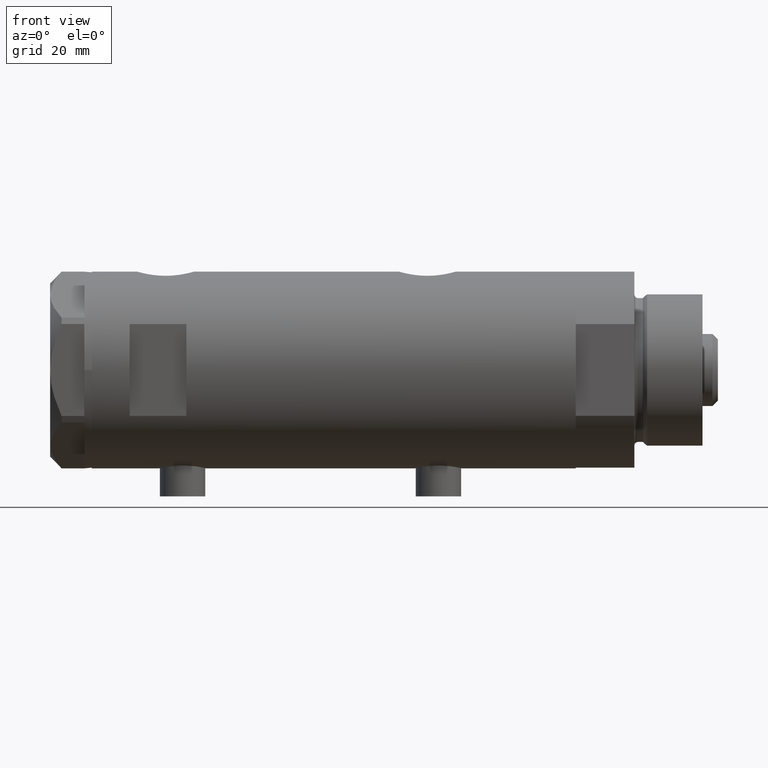
[diagram: clean part render]
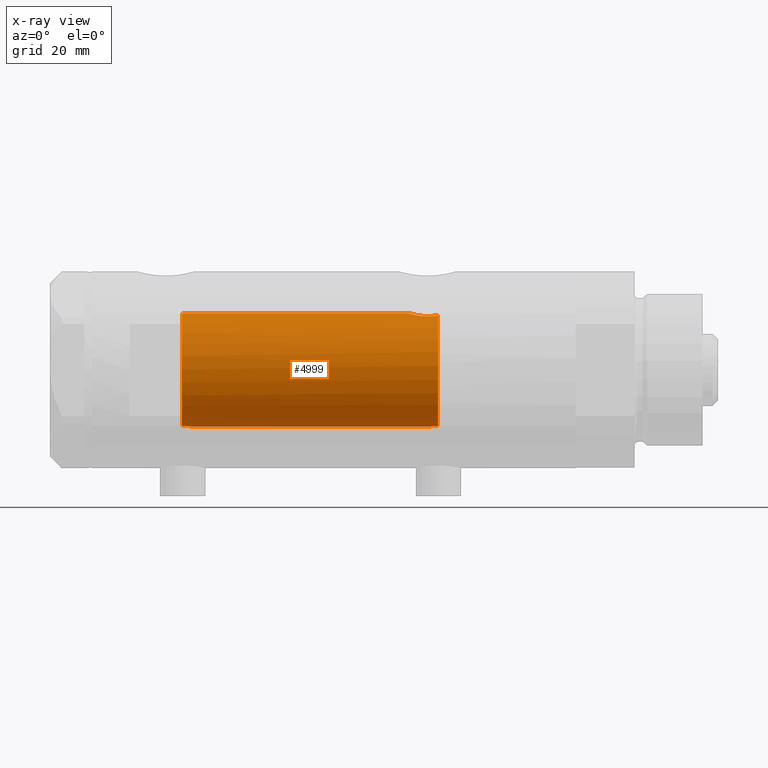
[diagram: x-ray — body ghosted, one internal face saturated and labeled with its STEP entity id]
A machine part, front view, then the same camera in x-ray: the body is ghosted and one INTERNAL B-rep face — a face not visible from any outside direction — is saturated and labeled: STEP entity #4999.
In plain terms, the highlighted cylindrical surface (partial cylindrical patch) has radius 15 mm, axis along (1, 0, -0).
Its self-contained STEP definition (entity closure, byte-faithful):
#130 = CARTESIAN_POINT ( 'NONE',  ( 14.46277203719950677, -3.978470183374504199, -27.55000000000000426 ) ) ;
#132 = CARTESIAN_POINT ( 'NONE',  ( 15.00000000000000000, 5.959273468635536151E-16, -19.88500000000000156 ) ) ;
#153 = CARTESIAN_POINT ( 'NONE',  ( -14.96154495298569032, -1.083625483837068026, -25.39138979525010598 ) ) ;
#193 = CARTESIAN_POINT ( 'NONE',  ( 14.23846660849503465, -4.718934182878723682, -25.95401121469808459 ) ) ;
#205 = CARTESIAN_POINT ( 'NONE',  ( -14.84760220014584498, -2.134792770974418108, -26.33921818480346033 ) ) ;
#253 = CARTESIAN_POINT ( 'NONE',  ( -14.83314878996174357, -2.232849285003168482, 38.81256080311607803 ) ) ;
#278 = CARTESIAN_POINT ( 'NONE',  ( -14.99695275358354252, -0.3460123648701027288, 37.46810396824249523 ) ) ;
#301 = AXIS2_PLACEMENT_3D ( 'NONE', #3387, #2029, #4065 ) ;
#346 = EDGE_CURVE ( 'NONE', #545, #2776, #3412, .T. ) ;
#365 = CARTESIAN_POINT ( 'NONE',  ( 0.000000000000000000, 0.000000000000000000, -27.55000000000000426 ) ) ;
#472 = CARTESIAN_POINT ( 'NONE',  ( -15.00000000000000000, 0.000000000000000000, 63.95000000000000995 ) ) ;
#545 = VERTEX_POINT ( 'NONE', #130 ) ;
#565 = CARTESIAN_POINT ( 'NONE',  ( -14.95054302956255121, -1.224431043437662625, -25.46458290830103977 ) ) ;
#596 = CARTESIAN_POINT ( 'NONE',  ( -14.92627313122705779, -1.491421694539937226, -25.63730514635739866 ) ) ;
#632 = EDGE_CURVE ( 'NONE', #2374, #4675, #4345, .T. ) ;
#664 = CARTESIAN_POINT ( 'NONE',  ( -14.82167156606024783, -2.306788152106016287, 38.97115114601642460 ) ) ;
#673 = CARTESIAN_POINT ( 'NONE',  ( -14.99740058099025930, -0.3199290537848247240, -25.16546469274587139 ) ) ;
#853 = VERTEX_POINT ( 'NONE', #2956 ) ;
#854 = ORIENTED_EDGE ( 'NONE', *, *, #1877, .F. ) ;
#940 = CARTESIAN_POINT ( 'NONE',  ( 15.00000000000000000, -0.2216692655473424256, -19.88499999999999801 ) ) ;
#1017 = CARTESIAN_POINT ( 'NONE',  ( 14.98404828787190191, -0.7909490205761877668, 39.63356230794191504 ) ) ;
#1023 = CARTESIAN_POINT ( 'NONE',  ( 15.00000000000000000, 5.959273468635536151E-16, -19.88500000000000156 ) ) ;
#1026 = CARTESIAN_POINT ( 'NONE',  ( -14.97699254061832796, -0.8454257663520248212, 37.59097868826834343 ) ) ;
#1032 = CARTESIAN_POINT ( 'NONE',  ( -14.80570803900863908, -2.410056876876584209, -26.91354637206099554 ) ) ;
#1046 = CARTESIAN_POINT ( 'NONE',  ( 14.90017778876745069, -1.739641523727900596, -20.20130925695125867 ) ) ;
#1050 = CARTESIAN_POINT ( 'NONE',  ( -14.90147761301467710, -1.720422196468683440, 38.12794212931562754 ) ) ;
#1152 = CYLINDRICAL_SURFACE ( 'NONE', #4520, 15.00000000000000000 ) ;
#1202 = VERTEX_POINT ( 'NONE', #1469 ) ;
#1212 = B_SPLINE_CURVE_WITH_KNOTS ( 'NONE', 3,
 ( #5082, #5002, #1017, #3449, #1465, #5109, #4606, #2649 ),
 .UNSPECIFIED., .F., .F.,
 ( 4, 2, 2, 4 ),
 ( 2.641598245732904660E-19, 0.001182100180564266394, 0.001773150270846399592, 0.002364200361128532789 ),
 .UNSPECIFIED. ) ;
#1337 = CARTESIAN_POINT ( 'NONE',  ( 14.81710879718117724, -2.343063746046469387, -20.48067662538953471 ) ) ;
#1341 = EDGE_CURVE ( 'NONE', #2374, #1202, #3491, .T. ) ;
#1362 = CARTESIAN_POINT ( 'NONE',  ( 14.30602371879161439, -4.510400617436905790, -26.58665028800271557 ) ) ;
#1374 = CARTESIAN_POINT ( 'NONE',  ( -14.98007298506453111, -0.7870736506658164711, -25.27174868555716003 ) ) ;
#1394 = CARTESIAN_POINT ( 'NONE',  ( 14.20926245015526135, -4.806160851464704287, -23.96377327795615031 ) ) ;
#1420 = CARTESIAN_POINT ( 'NONE',  ( 14.96064712090283777, -1.106639041422191605, -20.00738179736371336 ) ) ;
#1465 = CARTESIAN_POINT ( 'NONE',  ( 14.92029983160078466, -1.555365312915176323, 39.83609703141412695 ) ) ;
#1469 = CARTESIAN_POINT ( 'NONE',  ( 14.82638779339053769, -2.275571356824481750, 40.15000000000000568 ) ) ;
#1477 = CARTESIAN_POINT ( 'NONE',  ( -14.85859683553260346, -2.056701007386132041, 38.51843972450895848 ) ) ;
#1598 = DIRECTION ( 'NONE',  ( -0.000000000000000000, -0.000000000000000000, -1.000000000000000000 ) ) ;
#1718 = VECTOR ( 'NONE', #1598, 1000.000000000000000 ) ;
#1733 = CARTESIAN_POINT ( 'NONE',  ( 14.64727859494137263, -3.248701865452403581, -21.10174013696654782 ) ) ;
#1783 = CARTESIAN_POINT ( 'NONE',  ( 14.18781489734108270, -4.868896704194245473, -24.85545969036061464 ) ) ;
#1794 = CARTESIAN_POINT ( 'NONE',  ( -14.83575030094399771, -2.214690538106014017, -26.47938890130203404 ) ) ;
#1829 = ORIENTED_EDGE ( 'NONE', *, *, #2911, .F. ) ;
#1837 = CARTESIAN_POINT ( 'NONE',  ( 14.84733308118440398, -2.144376633039214219, -20.37751912952715472 ) ) ;
#1840 = CARTESIAN_POINT ( 'NONE',  ( -14.98541608527170332, -0.6823644196029130526, 37.53879464417551759 ) ) ;
#1877 = EDGE_CURVE ( 'NONE', #853, #1202, #1212, .T. ) ;
#1881 = B_SPLINE_CURVE_WITH_KNOTS ( 'NONE', 3,
 ( #4164, #5049, #673, #3042, #1374, #153, #565, #596, #2163, #2192, #3809, #205, #1794, #1032, #3413, #5021 ),
 .UNSPECIFIED., .F., .F.,
 ( 4, 2, 2, 2, 2, 2, 2, 4 ),
 ( 9.232380109166849670E-20, 0.0004769863284873123192, 0.0009539726569746245300, 0.001430958985461936632, 0.001907945313949248843, 0.002384931642436560837, 0.002861917970923873698, 0.003815890627898489013 ),
 .UNSPECIFIED. ) ;
#1939 = CARTESIAN_POINT ( 'NONE',  ( -14.79053751558745944, -2.497999199359361544, -27.55000000000000426 ) ) ;
#1987 = LINE ( 'NONE', #472, #1718 ) ;
#2024 = ORIENTED_EDGE ( 'NONE', *, *, #4914, .T. ) ;
#2029 = DIRECTION ( 'NONE',  ( 0.000000000000000000, 0.000000000000000000, 1.000000000000000000 ) ) ;
#2069 = EDGE_LOOP ( 'NONE', ( #854, #2875, #2173, #2024, #4077, #1829, #3964, #4625 ) ) ;
#2163 = CARTESIAN_POINT ( 'NONE',  ( -14.91288509639097803, -1.618377549727004316, -25.73790984008952165 ) ) ;
#2173 = ORIENTED_EDGE ( 'NONE', *, *, #346, .F. ) ;
#2182 = CARTESIAN_POINT ( 'NONE',  ( 14.19858338301463085, -4.837406781463695182, -24.18614104090498884 ) ) ;
#2192 = CARTESIAN_POINT ( 'NONE',  ( -14.88625129008227077, -1.847379311388060108, -25.95812992433159749 ) ) ;
#2197 = CARTESIAN_POINT ( 'NONE',  ( -14.79723843696374885, -2.458094276708261638, 39.46231574989083413 ) ) ;
#2205 = CARTESIAN_POINT ( 'NONE',  ( 14.42796883436190569, -4.108435602805831977, -22.10726922759031510 ) ) ;
#2232 = CARTESIAN_POINT ( 'NONE',  ( 14.33349657381506681, -4.422893686125039636, -26.78827841538882737 ) ) ;
#2261 = CARTESIAN_POINT ( 'NONE',  ( -14.91608554980932055, -1.590576762727819116, 38.01369720243329198 ) ) ;
#2284 = CARTESIAN_POINT ( 'NONE',  ( -14.95581892566389115, -1.161262481484112152, 37.72937042154403997 ) ) ;
#2298 = CARTESIAN_POINT ( 'NONE',  ( -14.79155164274525980, -2.491987158875424768, 40.15000000000000568 ) ) ;
#2312 = DIRECTION ( 'NONE',  ( -1.000000000000000000, 0.000000000000000000, 0.000000000000000000 ) ) ;
#2374 = VERTEX_POINT ( 'NONE', #2869 ) ;
#2604 = CARTESIAN_POINT ( 'NONE',  ( -14.78989771875219539, -2.501882951377200737, 39.80631597653683684 ) ) ;
#2612 = CARTESIAN_POINT ( 'NONE',  ( 14.30772250772360188, -4.505024017690379523, -22.90010806953218037 ) ) ;
#2635 = CARTESIAN_POINT ( 'NONE',  ( -15.00000000000000000, 3.061618115923464028E-16, 37.45000000000000284 ) ) ;
#2649 = CARTESIAN_POINT ( 'NONE',  ( 14.82638779339053769, -2.275571356824481750, 40.15000000000000568 ) ) ;
#2711 = CARTESIAN_POINT ( 'NONE',  ( 0.000000000000000000, 0.000000000000000000, 63.95000000000000995 ) ) ;
#2763 = DIRECTION ( 'NONE',  ( -0.000000000000000000, -0.000000000000000000, -1.000000000000000000 ) ) ;
#2776 = VERTEX_POINT ( 'NONE', #132 ) ;
#2869 = CARTESIAN_POINT ( 'NONE',  ( -14.79155164274525980, -2.491987158875424768, 40.15000000000000568 ) ) ;
#2875 = ORIENTED_EDGE ( 'NONE', *, *, #3824, .T. ) ;
#2899 = DIRECTION ( 'NONE',  ( -0.000000000000000000, -0.000000000000000000, -1.000000000000000000 ) ) ;
#2911 = EDGE_CURVE ( 'NONE', #4675, #4739, #1987, .T. ) ;
#2953 = CARTESIAN_POINT ( 'NONE',  ( 14.92307637240703677, -1.532123959568890248, -20.12726557582076126 ) ) ;
#2956 = CARTESIAN_POINT ( 'NONE',  ( 15.00000000000000000, 0.000000000000000000, 39.58500000000000085 ) ) ;
#3001 = CARTESIAN_POINT ( 'NONE',  ( -14.78924132900106869, -2.505700361584525471, 39.97913437470933218 ) ) ;
#3010 = CARTESIAN_POINT ( 'NONE',  ( 14.19797987272029438, -4.839174951492910104, -25.29741451501410765 ) ) ;
#3034 = CARTESIAN_POINT ( 'NONE',  ( 14.99508877558422704, -0.4434836953032585405, -19.90007684727664028 ) ) ;
#3042 = CARTESIAN_POINT ( 'NONE',  ( -14.98749134158487095, -0.6320459414166007539, -25.22599747929445257 ) ) ;
#3055 = CARTESIAN_POINT ( 'NONE',  ( 14.25856516724843814, -4.658255869285517825, -26.17044016644936733 ) ) ;
#3058 = CARTESIAN_POINT ( 'NONE',  ( -14.80379558280398555, -2.418854260473059625, 39.29535450491658821 ) ) ;
#3183 = CARTESIAN_POINT ( 'NONE',  ( -15.00000000000000000, 3.061618115923464028E-16, 37.45000000000000284 ) ) ;
#3207 = DIRECTION ( 'NONE',  ( 0.000000000000000000, 0.000000000000000000, -1.000000000000000000 ) ) ;
#3246 = CARTESIAN_POINT ( 'NONE',  ( 15.00000000000000000, 1.836970198721029194E-15, 63.95000000000000995 ) ) ;
#3387 = CARTESIAN_POINT ( 'NONE',  ( 0.000000000000000000, 0.000000000000000000, 40.15000000000000568 ) ) ;
#3412 = B_SPLINE_CURVE_WITH_KNOTS ( 'NONE', 3,
 ( #3743, #4237, #5063, #2232, #1362, #3055, #193, #4959, #3010, #1783, #4186, #2182, #1394, #3429, #4612, #2612, #4216, #2205, #3849, #1733, #5038, #1337, #1837, #1046, #2953, #1420, #4556, #3034, #940, #1023 ),
 .UNSPECIFIED., .F., .F.,
 ( 4, 2, 2, 2, 2, 2, 2, 2, 2, 2, 2, 2, 2, 2, 4 ),
 ( 0.004672505804584291961, 0.005337629501999298885, 0.006002753199414305810, 0.006667876896829313602, 0.007333000594244319659, 0.007998124291659327451, 0.008663247989074335242, 0.009328371686489341300, 0.009993495383904347357, 0.01132374277873436988, 0.01265399017356439067, 0.01331911387097940366, 0.01398423756839441666, 0.01464936126580942966, 0.01531448496322444265 ),
 .UNSPECIFIED. ) ;
#3413 = CARTESIAN_POINT ( 'NONE',  ( -14.79268570220017409, -2.485279885960841817, -27.23227165314100517 ) ) ;
#3429 = CARTESIAN_POINT ( 'NONE',  ( 14.23984499268010673, -4.714778477509576682, -23.53008258614764614 ) ) ;
#3449 = CARTESIAN_POINT ( 'NONE',  ( 14.93900636919599911, -1.364886281976677163, 39.77622504971314044 ) ) ;
#3455 = CARTESIAN_POINT ( 'NONE',  ( -14.87260732106556560, -1.954338522023925773, 38.38146298750767471 ) ) ;
#3491 = CIRCLE ( 'NONE', #301, 15.00000000000000000 ) ;
#3510 = CARTESIAN_POINT ( 'NONE',  ( -14.94313933514151849, -1.312299271472199491, 37.81526966946925228 ) ) ;
#3680 = EDGE_CURVE ( 'NONE', #4739, #4139, #1881, .T. ) ;
#3743 = CARTESIAN_POINT ( 'NONE',  ( 14.46277203719950677, -3.978470183374504199, -27.55000000000000426 ) ) ;
#3809 = CARTESIAN_POINT ( 'NONE',  ( -14.87290636797879806, -1.950714596786577326, -26.07831246618854593 ) ) ;
#3824 = EDGE_CURVE ( 'NONE', #853, #2776, #4430, .T. ) ;
#3849 = CARTESIAN_POINT ( 'NONE',  ( 14.49994286062941207, -3.853373987417221702, -21.74743896782911534 ) ) ;
#3964 = ORIENTED_EDGE ( 'NONE', *, *, #632, .F. ) ;
#4065 = DIRECTION ( 'NONE',  ( 1.000000000000000000, 0.000000000000000000, 0.000000000000000000 ) ) ;
#4077 = ORIENTED_EDGE ( 'NONE', *, *, #3680, .F. ) ;
#4139 = VERTEX_POINT ( 'NONE', #1939 ) ;
#4164 = CARTESIAN_POINT ( 'NONE',  ( -15.00000000000000000, 0.000000000000000000, -25.15000000000000568 ) ) ;
#4186 = CARTESIAN_POINT ( 'NONE',  ( 14.18786347641749757, -4.868757996482117711, -24.63322300400293230 ) ) ;
#4216 = CARTESIAN_POINT ( 'NONE',  ( 14.33594561531103473, -4.414979644548147952, -22.69453393419243525 ) ) ;
#4237 = CARTESIAN_POINT ( 'NONE',  ( 14.42775250319760083, -4.105775281508736718, -27.36911445102908758 ) ) ;
#4241 = CARTESIAN_POINT ( 'NONE',  ( -15.00000000000000355, -0.1716226368084263487, 37.45000000000001705 ) ) ;
#4345 = B_SPLINE_CURVE_WITH_KNOTS ( 'NONE', 3,
 ( #2298, #3001, #2604, #2197, #3058, #664, #253, #1477, #3455, #1050, #2261, #3510, #2284, #1026, #1840, #278, #4241, #2635 ),
 .UNSPECIFIED., .F., .F.,
 ( 4, 2, 2, 2, 2, 2, 2, 2, 4 ),
 ( 0.003715686714229632630, 0.004229951999599991345, 0.004744217284970349627, 0.005258482570340707908, 0.005772747855711066189, 0.006287013141081424471, 0.006801278426451782752, 0.007315543711822141033, 0.007829808997192499315 ),
 .UNSPECIFIED. ) ;
#4369 = DIRECTION ( 'NONE',  ( -1.000000000000000000, 0.000000000000000000, 0.000000000000000000 ) ) ;
#4430 = LINE ( 'NONE', #3246, #4681 ) ;
#4520 = AXIS2_PLACEMENT_3D ( 'NONE', #2711, #2763, #2312 ) ;
#4556 = CARTESIAN_POINT ( 'NONE',  ( 14.97537530859971966, -0.8874117095427782598, -19.96137464055827948 ) ) ;
#4574 = CARTESIAN_POINT ( 'NONE',  ( -15.00000000000000000, 0.000000000000000000, -25.15000000000000568 ) ) ;
#4606 = CARTESIAN_POINT ( 'NONE',  ( 14.85289483991917336, -2.102865829523694607, 40.05860377881607093 ) ) ;
#4612 = CARTESIAN_POINT ( 'NONE',  ( 14.25977760983849230, -4.654557688538887739, -23.31736805897653042 ) ) ;
#4625 = ORIENTED_EDGE ( 'NONE', *, *, #1341, .T. ) ;
#4675 = VERTEX_POINT ( 'NONE', #3183 ) ;
#4681 = VECTOR ( 'NONE', #2899, 1000.000000000000000 ) ;
#4691 = AXIS2_PLACEMENT_3D ( 'NONE', #365, #3207, #4369 ) ;
#4739 = VERTEX_POINT ( 'NONE', #4574 ) ;
#4771 = FACE_OUTER_BOUND ( 'NONE', #2069, .T. ) ;
#4914 = EDGE_CURVE ( 'NONE', #545, #4139, #4947, .T. ) ;
#4947 = CIRCLE ( 'NONE', #4691, 15.00000000000000000 ) ;
#4959 = CARTESIAN_POINT ( 'NONE',  ( 14.20819413761015326, -4.809312895991455505, -25.51713251522166104 ) ) ;
#4999 = ADVANCED_FACE ( 'NONE', ( #4771 ), #1152, .F. ) ;
#5002 = CARTESIAN_POINT ( 'NONE',  ( 15.00000000000000178, -0.3999014018875941545, 39.58500000000000085 ) ) ;
#5021 = CARTESIAN_POINT ( 'NONE',  ( -14.79053751558745944, -2.497999199359361544, -27.55000000000000426 ) ) ;
#5038 = CARTESIAN_POINT ( 'NONE',  ( 14.72015646623405871, -2.909233045280604113, -20.82572079632733519 ) ) ;
#5049 = CARTESIAN_POINT ( 'NONE',  ( -15.00000000000000711, -0.1613061104920439637, -25.15000000000001279 ) ) ;
#5063 = CARTESIAN_POINT ( 'NONE',  ( 14.39424372609267522, -4.221002267729139668, -27.17893131093289938 ) ) ;
#5082 = CARTESIAN_POINT ( 'NONE',  ( 15.00000000000000000, 0.000000000000000000, 39.58500000000000085 ) ) ;
#5109 = CARTESIAN_POINT ( 'NONE',  ( 14.87720562886504538, -1.924385875533401125, 39.97741675737692901 ) ) ;